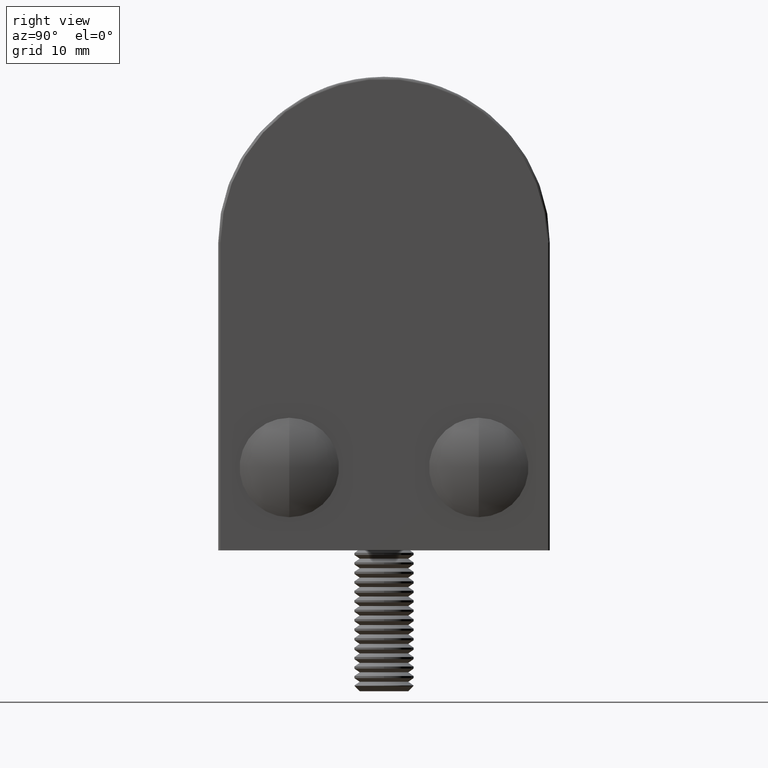
[diagram: clean part render]
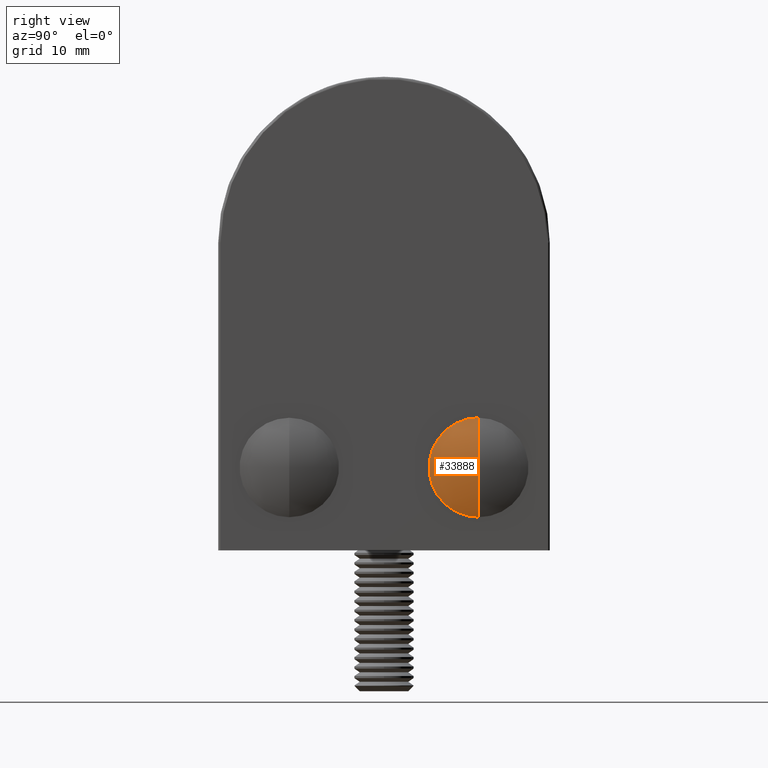
[diagram: same view with one face highlighted and labeled with its STEP entity id]
A machine part, right view. The second image highlights one B-rep face of the part: STEP entity #33888.
In plain terms, the highlighted spherical surface has radius 9.32 mm.
Its self-contained STEP definition (entity closure, byte-faithful):
#867 = DIRECTION ( 'NONE',  ( 0.0000000000000000000, 0.0000000000000000000, -1.000000000000000000 ) ) ;
#6758 = CARTESIAN_POINT ( 'NONE',  ( -4.200000000000000200, 8.673617379884035500E-016, 5.143516556418884900E-016 ) ) ;
#10273 = EDGE_CURVE ( 'NONE', #46387, #28555, #42203, .T. ) ;
#11051 = VERTEX_POINT ( 'NONE', #39233 ) ;
#13766 = EDGE_CURVE ( 'NONE', #46387, #11051, #17948, .T. ) ;
#15895 = EDGE_LOOP ( 'NONE', ( #17325, #37730, #22811 ) ) ;
#16712 = DIRECTION ( 'NONE',  ( -0.0000000000000000000, -1.000000000000000000, -0.0000000000000000000 ) ) ;
#16731 = DIRECTION ( 'NONE',  ( 1.000000000000000000, 0.0000000000000000000, 0.0000000000000000000 ) ) ;
#17325 = ORIENTED_EDGE ( 'NONE', *, *, #13766, .F. ) ;
#17948 = CIRCLE ( 'NONE', #20753, 9.319999999999995000 ) ;
#18627 = CARTESIAN_POINT ( 'NONE',  ( 0.0000000000000000000, -8.319999999999993200, 0.0000000000000000000 ) ) ;
#20753 = AXIS2_PLACEMENT_3D ( 'NONE', #27726, #867, #24142 ) ;
#22811 = ORIENTED_EDGE ( 'NONE', *, *, #40589, .F. ) ;
#24142 = DIRECTION ( 'NONE',  ( -1.000000000000000000, 0.0000000000000000000, 0.0000000000000000000 ) ) ;
#27726 = CARTESIAN_POINT ( 'NONE',  ( 0.0000000000000000000, -8.319999999999993200, 0.0000000000000000000 ) ) ;
#28555 = VERTEX_POINT ( 'NONE', #6758 ) ;
#31201 = SPHERICAL_SURFACE ( 'NONE', #40287, 9.319999999999995000 ) ;
#31995 = CARTESIAN_POINT ( 'NONE',  ( 0.0000000000000000000, -8.319999999999993200, 0.0000000000000000000 ) ) ;
#32076 = CIRCLE ( 'NONE', #34123, 4.200000000000001100 ) ;
#33006 = CARTESIAN_POINT ( 'NONE',  ( 0.0000000000000000000, 0.0000000000000000000, 0.0000000000000000000 ) ) ;
#33888 = ADVANCED_FACE ( 'NONE', ( #36197 ), #31201, .T. ) ;
#34123 = AXIS2_PLACEMENT_3D ( 'NONE', #33006, #16712, #36833 ) ;
#34607 = DIRECTION ( 'NONE',  ( 1.000000000000000000, 0.0000000000000000000, -1.224646799147353500E-016 ) ) ;
#36197 = FACE_OUTER_BOUND ( 'NONE', #15895, .T. ) ;
#36833 = DIRECTION ( 'NONE',  ( 0.0000000000000000000, 0.0000000000000000000, -1.000000000000000000 ) ) ;
#37730 = ORIENTED_EDGE ( 'NONE', *, *, #10273, .T. ) ;
#39233 = CARTESIAN_POINT ( 'NONE',  ( 4.200000000000000200, 8.673617379884035500E-016, 0.0000000000000000000 ) ) ;
#40287 = AXIS2_PLACEMENT_3D ( 'NONE', #31995, #47866, #16731 ) ;
#40589 = EDGE_CURVE ( 'NONE', #11051, #28555, #32076, .T. ) ;
#42199 = CARTESIAN_POINT ( 'NONE',  ( 5.706854084026663700E-016, 1.000000000000000900, 0.0000000000000000000 ) ) ;
#42203 = CIRCLE ( 'NONE', #48718, 9.319999999999995000 ) ;
#46387 = VERTEX_POINT ( 'NONE', #42199 ) ;
#47866 = DIRECTION ( 'NONE',  ( 0.0000000000000000000, 0.0000000000000000000, 1.000000000000000000 ) ) ;
#48718 = AXIS2_PLACEMENT_3D ( 'NONE', #18627, #50112, #34607 ) ;
#50112 = DIRECTION ( 'NONE',  ( 1.224646799147353200E-016, -0.0000000000000000000, 1.000000000000000000 ) ) ;